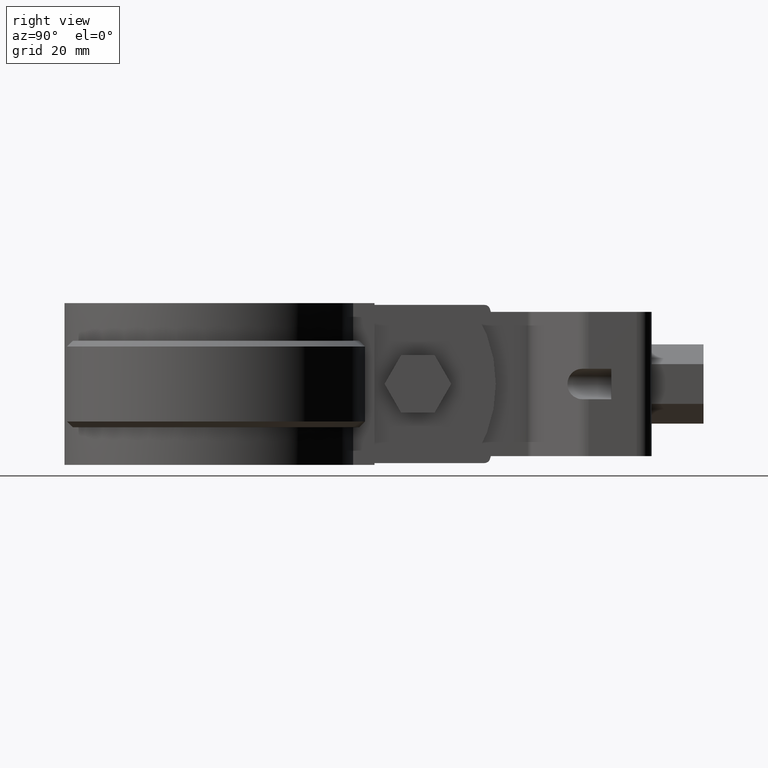
[diagram: clean part render]
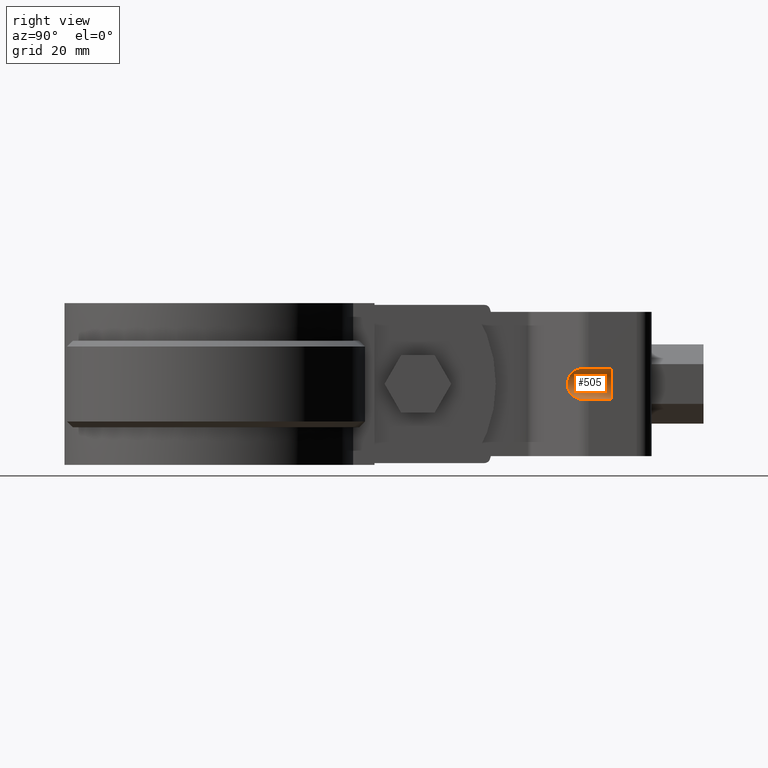
[diagram: same view with one face highlighted and labeled with its STEP entity id]
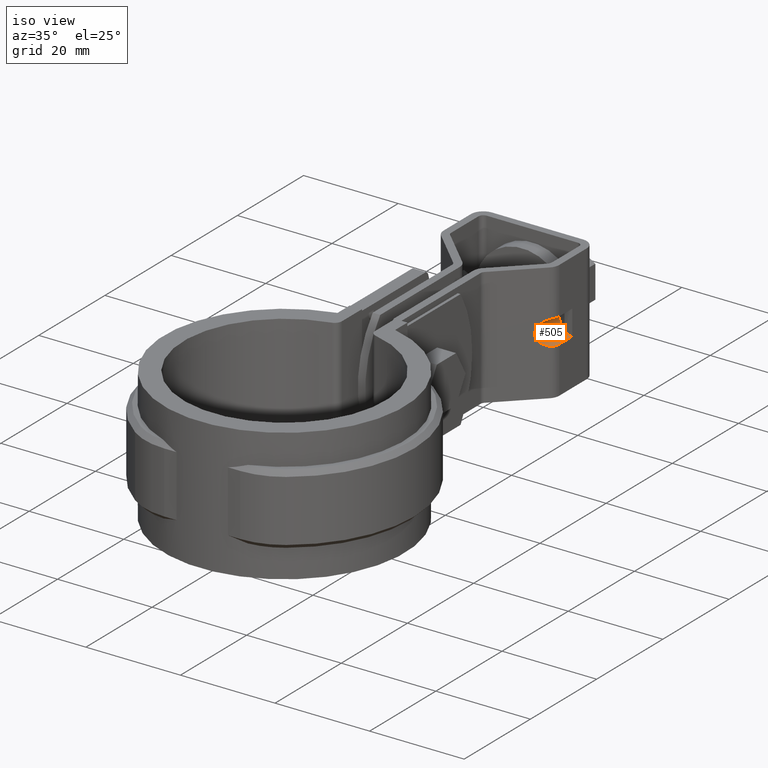
[diagram: same view with one face highlighted and labeled with its STEP entity id]
A machine part, right view. The second image highlights one B-rep face of the part: STEP entity #505.
A second angle (iso view) of the same face is appended — the face is thin or edge-on in the first view.
In plain terms, the highlighted cylindrical surface (edge-blend (fillet) strip) has radius 2.65 mm, axis along (0, -1, -0).
Its self-contained STEP definition (entity closure, byte-faithful):
#505 = ADVANCED_FACE( '', ( #1020 ), #1021, .F. );
#1020 = FACE_OUTER_BOUND( '', #2161, .T. );
#1021 = CYLINDRICAL_SURFACE( '', #2162, 2.64999999999997 );
#2161 = EDGE_LOOP( '', ( #5318, #5319, #5320, #5321, #5322, #5323, #5324, #5325 ) );
#2162 = AXIS2_PLACEMENT_3D( '', #5326, #5327, #5328 );
#5318 = ORIENTED_EDGE( '', *, *, #7455, .F. );
#5319 = ORIENTED_EDGE( '', *, *, #7456, .F. );
#5320 = ORIENTED_EDGE( '', *, *, #7457, .T. );
#5321 = ORIENTED_EDGE( '', *, *, #7458, .T. );
#5322 = ORIENTED_EDGE( '', *, *, #7459, .T. );
#5323 = ORIENTED_EDGE( '', *, *, #7460, .T. );
#5324 = ORIENTED_EDGE( '', *, *, #7461, .F. );
#5325 = ORIENTED_EDGE( '', *, *, #7462, .F. );
#5326 = CARTESIAN_POINT( '', ( 12.2500000000004, 59.4025110200043, -12.5000000000261 ) );
#5327 = DIRECTION( '', ( 7.98723925267933E-016, -1.00000000000000, -1.26121335597421E-013 ) );
#5328 = DIRECTION( '', ( -2.68549453086784E-014, -1.26121335597421E-013, 1.00000000000000 ) );
#7455 = EDGE_CURVE( '', #8740, #8741, #8742, .T. );
#7456 = EDGE_CURVE( '', #8743, #8740, #8744, .T. );
#7457 = EDGE_CURVE( '', #8743, #8745, #8746, .T. );
#7458 = EDGE_CURVE( '', #8745, #8747, #8748, .T. );
#7459 = EDGE_CURVE( '', #8747, #8749, #8750, .T. );
#7460 = EDGE_CURVE( '', #8749, #8751, #8752, .T. );
#7461 = EDGE_CURVE( '', #8753, #8751, #8754, .T. );
#7462 = EDGE_CURVE( '', #8741, #8753, #8755, .T. );
#8740 = VERTEX_POINT( '', #13015 );
#8741 = VERTEX_POINT( '', #13016 );
#8742 = ELLIPSE( '', #13017, 3.70224472166266, 2.64999999999997 );
#8743 = VERTEX_POINT( '', #13018 );
#8744 = B_SPLINE_CURVE_WITH_KNOTS( '', 3, ( #13019, #13020, #13021, #13022, #13023, #13024, #13025, #13026, #13027, #13028 ), .UNSPECIFIED., .F., .F., ( 4, 2, 2, 2, 4 ), ( 0.000000000000000, 0.000517346174284565, 0.00103469234856913, 0.00155203852285369, 0.00206938469713826 ), .UNSPECIFIED. );
#8745 = VERTEX_POINT( '', #13029 );
#8746 = LINE( '', #13030, #13031 );
#8747 = VERTEX_POINT( '', #13032 );
#8748 = CIRCLE( '', #13033, 2.64999999999997 );
#8749 = VERTEX_POINT( '', #13034 );
#8750 = CIRCLE( '', #13035, 2.64999999999997 );
#8751 = VERTEX_POINT( '', #13036 );
#8752 = CIRCLE( '', #13037, 2.64999999999997 );
#8753 = VERTEX_POINT( '', #13038 );
#8754 = LINE( '', #13039, #13040 );
#8755 = B_SPLINE_CURVE_WITH_KNOTS( '', 3, ( #13041, #13042, #13043, #13044, #13045, #13046, #13047, #13048 ), .UNSPECIFIED., .F., .F., ( 4, 2, 2, 4 ), ( 1.73472347597683E-018, 0.000516787748161290, 0.00103357549632258, 0.00206715099264519 ), .UNSPECIFIED. );
#13015 = CARTESIAN_POINT( '', ( 11.4656419723797, 63.6372837113709, -15.0312610463238 ) );
#13016 = CARTESIAN_POINT( '', ( 11.4656419723797, 63.6372837113703, -9.96873895372734 ) );
#13017 = AXIS2_PLACEMENT_3D( '', #14898, #14899, #14900 );
#13018 = CARTESIAN_POINT( '', ( 12.2500000000004, 65.4983168191190, -15.1500000000253 ) );
#13019 = CARTESIAN_POINT( '', ( 12.2500000000004, 65.4983168191190, -15.1500000000253 ) );
#13020 = CARTESIAN_POINT( '', ( 12.2500000000004, 65.3234267548708, -15.1500000000253 ) );
#13021 = CARTESIAN_POINT( '', ( 12.2325330354087, 65.1514843469652, -15.1501636960301 ) );
#13022 = CARTESIAN_POINT( '', ( 12.1640563524480, 64.8132691569571, -15.1488273632031 ) );
#13023 = CARTESIAN_POINT( '', ( 12.1121297117034, 64.6451383086751, -15.1472759528901 ) );
#13024 = CARTESIAN_POINT( '', ( 11.9772119360853, 64.3261048534412, -15.1367906362338 ) );
#13025 = CARTESIAN_POINT( '', ( 11.8947254704614, 64.1750936340899, -15.1279277835082 ) );
#13026 = CARTESIAN_POINT( '', ( 11.7003962036495, 63.8903406242715, -15.0942552098259 ) );
#13027 = CARTESIAN_POINT( '', ( 11.5880224298585, 63.7566792741217, -15.0691828933762 ) );
#13028 = CARTESIAN_POINT( '', ( 11.4656419723797, 63.6372837113709, -15.0312610463238 ) );
#13029 = CARTESIAN_POINT( '', ( 12.2500000000004, 69.4025110200047, -15.1500000000248 ) );
#13030 = CARTESIAN_POINT( '', ( 12.2500000000004, 59.4025110200047, -15.1500000000261 ) );
#13031 = VECTOR( '', #14901, 1000.00000000000 );
#13032 = CARTESIAN_POINT( '', ( 10.6500000000004, 69.4025110200046, -14.6124630174526 ) );
#13033 = AXIS2_PLACEMENT_3D( '', #14902, #14903, #14904 );
#13034 = CARTESIAN_POINT( '', ( 10.6500000000004, 69.4025110200041, -10.3875369825971 ) );
#13035 = AXIS2_PLACEMENT_3D( '', #14905, #14906, #14907 );
#13036 = CARTESIAN_POINT( '', ( 12.2500000000004, 69.4025110200040, -9.85000000002487 ) );
#13037 = AXIS2_PLACEMENT_3D( '', #14908, #14909, #14910 );
#13038 = CARTESIAN_POINT( '', ( 12.2500000000004, 65.4983168191183, -9.85000000002537 ) );
#13039 = CARTESIAN_POINT( '', ( 12.2500000000004, 59.4025110200040, -9.85000000002613 ) );
#13040 = VECTOR( '', #14911, 1000.00000000000 );
#13041 = CARTESIAN_POINT( '', ( 11.4656419723797, 63.6372837113703, -9.96873895372732 ) );
#13042 = CARTESIAN_POINT( '', ( 11.5880007594314, 63.7566581322420, -9.93082382165735 ) );
#13043 = CARTESIAN_POINT( '', ( 11.6979909725819, 63.8873570976113, -9.90626133021564 ) );
#13044 = CARTESIAN_POINT( '', ( 11.8919853000439, 64.1705517184765, -9.87244986192465 ) );
#13045 = CARTESIAN_POINT( '', ( 11.9765770457463, 64.3248769170096, -9.86327473214252 ) );
#13046 = CARTESIAN_POINT( '', ( 12.1789956025123, 64.8027098488497, -9.84749564067750 ) );
#13047 = CARTESIAN_POINT( '', ( 12.2500000000004, 65.1487749770712, -9.85000000002541 ) );
#13048 = CARTESIAN_POINT( '', ( 12.2500000000004, 65.4983168191183, -9.85000000002537 ) );
#14898 = CARTESIAN_POINT( '', ( 12.2500000000004, 64.4025110200045, -12.5000000000255 ) );
#14899 = DIRECTION( '', ( -0.698323835530498, 0.715781964518508, 8.61906520498283E-014 ) );
#14900 = DIRECTION( '', ( 0.715781964518508, 0.698323835530498, 9.22603784548185E-014 ) );
#14901 = DIRECTION( '', ( -7.98723925267933E-016, 1.00000000000000, 1.26121335597421E-013 ) );
#14902 = CARTESIAN_POINT( '', ( 12.2500000000004, 69.4025110200043, -12.5000000000248 ) );
#14903 = DIRECTION( '', ( -7.98723925267933E-016, 1.00000000000000, 1.26121335597421E-013 ) );
#14904 = DIRECTION( '', ( -5.25272843802364E-015, -1.26121335597421E-013, 1.00000000000000 ) );
#14905 = CARTESIAN_POINT( '', ( 12.2500000000004, 69.4025110200043, -12.5000000000248 ) );
#14906 = DIRECTION( '', ( -7.98723925267933E-016, 1.00000000000000, 1.26121335597421E-013 ) );
#14907 = DIRECTION( '', ( -5.25272843802364E-015, -1.26121335597421E-013, 1.00000000000000 ) );
#14908 = CARTESIAN_POINT( '', ( 12.2500000000004, 69.4025110200043, -12.5000000000248 ) );
#14909 = DIRECTION( '', ( -7.98723925267933E-016, 1.00000000000000, 1.26121335597421E-013 ) );
#14910 = DIRECTION( '', ( -5.25272843802364E-015, -1.26121335597421E-013, 1.00000000000000 ) );
#14911 = DIRECTION( '', ( -7.98723925267933E-016, 1.00000000000000, 1.26121335597421E-013 ) );